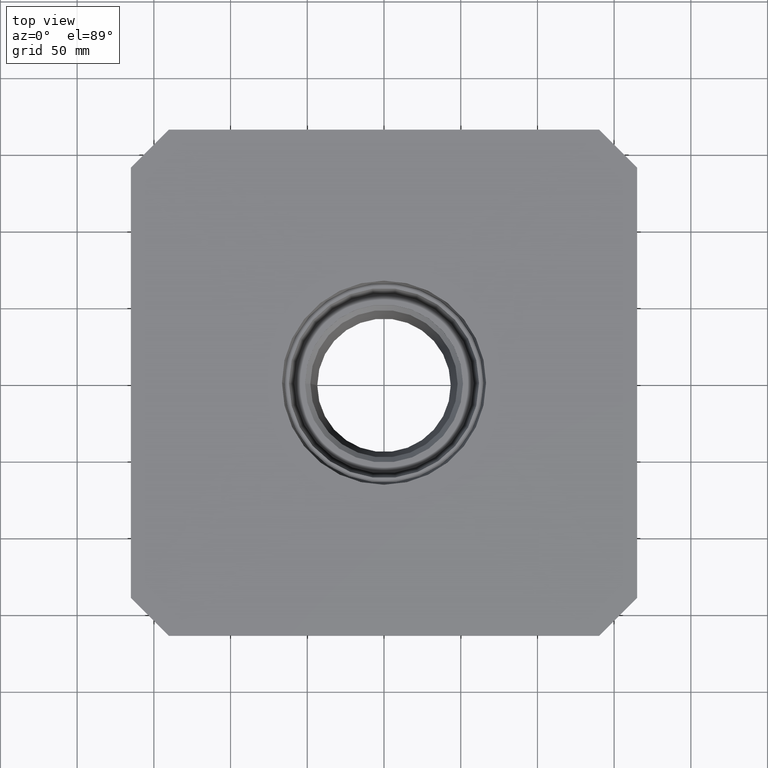
[diagram: clean part render]
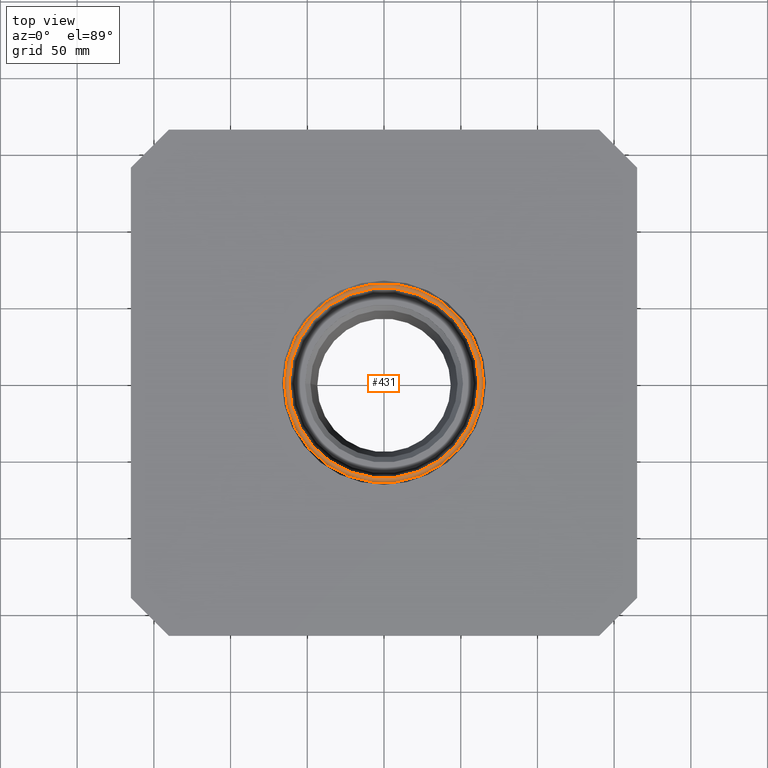
[diagram: same view with one face highlighted and labeled with its STEP entity id]
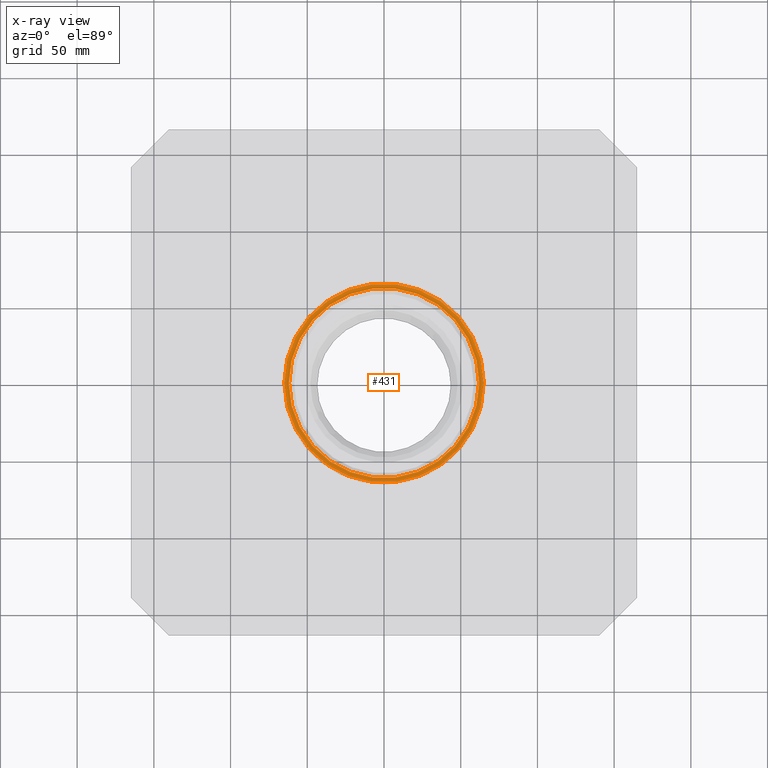
[diagram: x-ray of the same camera — body ghosted, the highlighted face saturated]
A machine part, top view. The second image highlights one B-rep face of the part: STEP entity #431.
The next image is the same camera in x-ray: the body ghosted, the highlighted face saturated — about 0% of this face is hidden behind the body in this view.
In plain terms, the highlighted planar face has unit normal (0, 0, 1).
Its self-contained STEP definition (entity closure, byte-faithful):
#39=CIRCLE('',#485,64.897);
#40=CIRCLE('',#487,61.897);
#108=ORIENTED_EDGE('',*,*,#188,.T.);
#109=ORIENTED_EDGE('',*,*,#187,.F.);
#187=EDGE_CURVE('',#226,#226,#39,.T.);
#188=EDGE_CURVE('',#227,#227,#40,.T.);
#226=VERTEX_POINT('',#727);
#227=VERTEX_POINT('',#730);
#312=EDGE_LOOP('',(#108));
#313=EDGE_LOOP('',(#109));
#368=FACE_BOUND('',#312,.T.);
#369=FACE_BOUND('',#313,.T.);
#409=PLANE('',#486);
#431=ADVANCED_FACE('',(#368,#369),#409,.T.);
#485=AXIS2_PLACEMENT_3D('',#726,#591,#592);
#486=AXIS2_PLACEMENT_3D('',#728,#593,#594);
#487=AXIS2_PLACEMENT_3D('',#729,#595,#596);
#591=DIRECTION('',(0.,0.,-1.));
#592=DIRECTION('',(-1.,0.,0.));
#593=DIRECTION('',(0.,0.,1.));
#594=DIRECTION('',(1.,0.,0.));
#595=DIRECTION('',(0.,0.,-1.));
#596=DIRECTION('',(-1.,0.,0.));
#726=CARTESIAN_POINT('',(0.,0.,-12.));
#727=CARTESIAN_POINT('',(-64.897,0.,-12.));
#728=CARTESIAN_POINT('',(-64.897,0.,-12.));
#729=CARTESIAN_POINT('',(0.,0.,-12.));
#730=CARTESIAN_POINT('',(-61.897,0.,-12.));